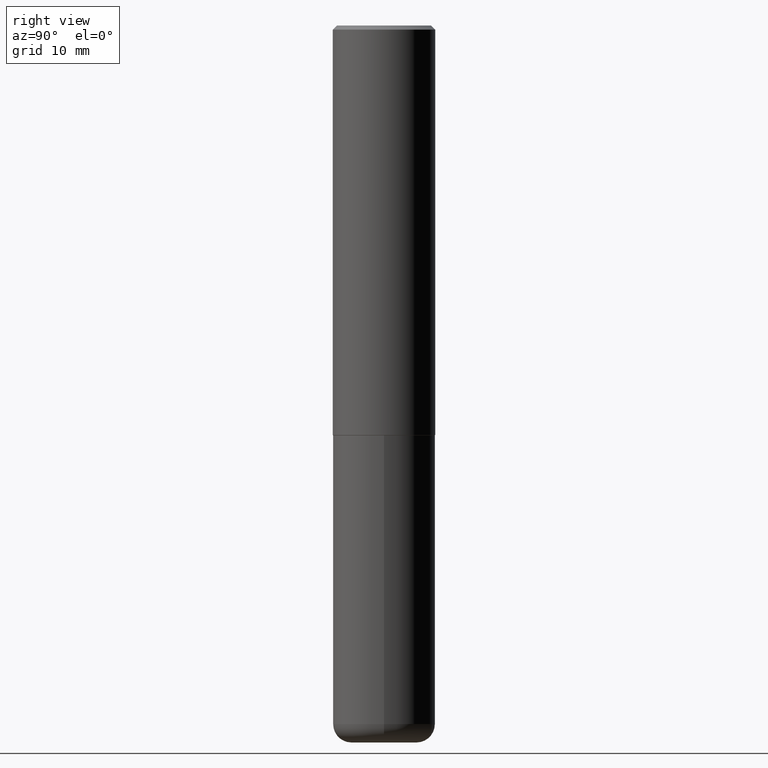
[diagram: clean part render]
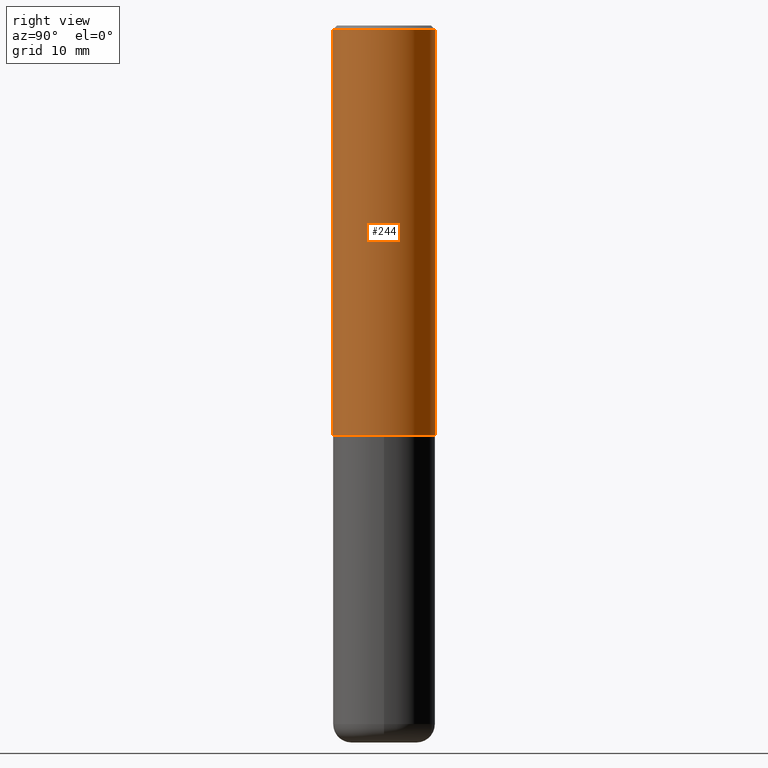
[diagram: same view with one face highlighted and labeled with its STEP entity id]
A machine part, right view. The second image highlights one B-rep face of the part: STEP entity #244.
In plain terms, the highlighted cylindrical surface (partial cylindrical patch) has radius 6.35 mm, axis along (-0, 0, 1).
Its self-contained STEP definition (entity closure, byte-faithful):
#2 = VERTEX_POINT ( 'NONE', #410 ) ;
#6 = CARTESIAN_POINT ( 'NONE',  ( -1.715124499442882299E-15, -0.2500000000000000555, -0.01999999999999918510 ) ) ;
#7 = EDGE_CURVE ( 'NONE', #384, #346, #256, .T. ) ;
#50 = ORIENTED_EDGE ( 'NONE', *, *, #172, .F. ) ;
#76 = EDGE_CURVE ( 'NONE', #384, #338, #226, .T. ) ;
#78 = EDGE_LOOP ( 'NONE', ( #303, #406, #50, #151 ) ) ;
#91 = VECTOR ( 'NONE', #218, 39.37007874015748143 ) ;
#96 = DIRECTION ( 'NONE',  ( -2.445737183286911680E-29, 3.491097007558327602E-15, 1.000000000000000000 ) ) ;
#97 = CARTESIAN_POINT ( 'NONE',  ( 4.891474366573836672E-31, -6.982194015116674235E-17, -0.02000000000000005593 ) ) ;
#99 = DIRECTION ( 'NONE',  ( -2.445737183286911680E-29, 3.491097007558327602E-15, 1.000000000000000000 ) ) ;
#102 = VECTOR ( 'NONE', #96, 39.37007874015748143 ) ;
#104 = LINE ( 'NONE', #282, #91 ) ;
#106 = CIRCLE ( 'NONE', #333, 0.2500000000000000000 ) ;
#151 = ORIENTED_EDGE ( 'NONE', *, *, #7, .F. ) ;
#158 = DIRECTION ( 'NONE',  ( -6.982962677686266711E-15, -1.000000000000000000, 3.491097007558327996E-15 ) ) ;
#168 = EDGE_CURVE ( 'NONE', #338, #2, #104, .T. ) ;
#172 = EDGE_CURVE ( 'NONE', #346, #2, #106, .T. ) ;
#179 = CARTESIAN_POINT ( 'NONE',  ( 1.776356839400276103E-15, 0.2499999999999933109, -1.999000000000000554 ) ) ;
#182 = CYLINDRICAL_SURFACE ( 'NONE', #281, 0.2500000000000001110 ) ;
#195 = CARTESIAN_POINT ( 'NONE',  ( -1.745740669421567467E-15, -0.2500000000000001110, 8.727742518895823935E-16 ) ) ;
#218 = DIRECTION ( 'NONE',  ( -2.445737183286911680E-29, 3.491097007558327602E-15, 1.000000000000000000 ) ) ;
#226 = CIRCLE ( 'NONE', #382, 0.2500000000000002776 ) ;
#228 = DIRECTION ( 'NONE',  ( -2.445737183286911680E-29, 3.491097007558327602E-15, 1.000000000000000000 ) ) ;
#230 = FACE_OUTER_BOUND ( 'NONE', #78, .T. ) ;
#238 = CARTESIAN_POINT ( 'NONE',  ( -1.745740669421519543E-15, -0.2500000000000072164, -1.998999999999998778 ) ) ;
#244 = ADVANCED_FACE ( 'NONE', ( #230 ), #182, .T. ) ;
#256 = LINE ( 'NONE', #195, #102 ) ;
#281 = AXIS2_PLACEMENT_3D ( 'NONE', #347, #228, #158 ) ;
#282 = CARTESIAN_POINT ( 'NONE',  ( 1.776356839400251254E-15, 0.2500000000000001110, -8.727742518895823935E-16 ) ) ;
#303 = ORIENTED_EDGE ( 'NONE', *, *, #76, .T. ) ;
#318 = CARTESIAN_POINT ( 'NONE',  ( 4.889028629390535480E-29, -6.978702918109095527E-15, -1.998999999999999666 ) ) ;
#333 = AXIS2_PLACEMENT_3D ( 'NONE', #97, #375, #358 ) ;
#338 = VERTEX_POINT ( 'NONE', #179 ) ;
#346 = VERTEX_POINT ( 'NONE', #6 ) ;
#347 = CARTESIAN_POINT ( 'NONE',  ( 0.000000000000000000, 0.000000000000000000, 0.000000000000000000 ) ) ;
#352 = DIRECTION ( 'NONE',  ( -6.982962677686265922E-15, -1.000000000000000000, 3.278217592397112312E-15 ) ) ;
#358 = DIRECTION ( 'NONE',  ( -6.982962677686265922E-15, -1.000000000000000000, 3.483106191921935554E-15 ) ) ;
#375 = DIRECTION ( 'NONE',  ( -2.445737183286911680E-29, 3.491097007558327602E-15, 1.000000000000000000 ) ) ;
#382 = AXIS2_PLACEMENT_3D ( 'NONE', #318, #99, #352 ) ;
#384 = VERTEX_POINT ( 'NONE', #238 ) ;
#406 = ORIENTED_EDGE ( 'NONE', *, *, #168, .T. ) ;
#410 = CARTESIAN_POINT ( 'NONE',  ( 1.745740669421566875E-15, 0.2499999999999999167, -0.02000000000000092676 ) ) ;